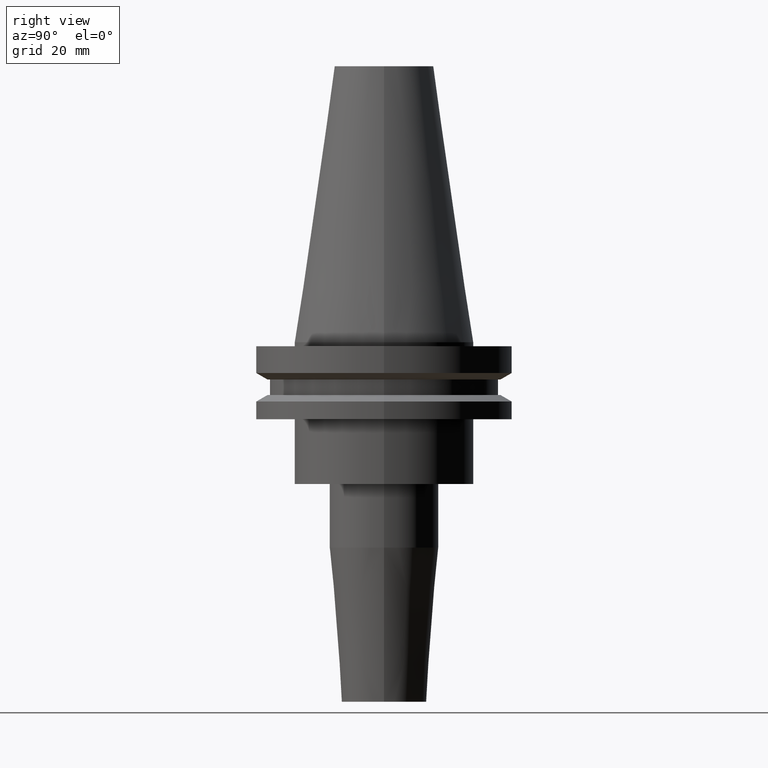
[diagram: clean part render]
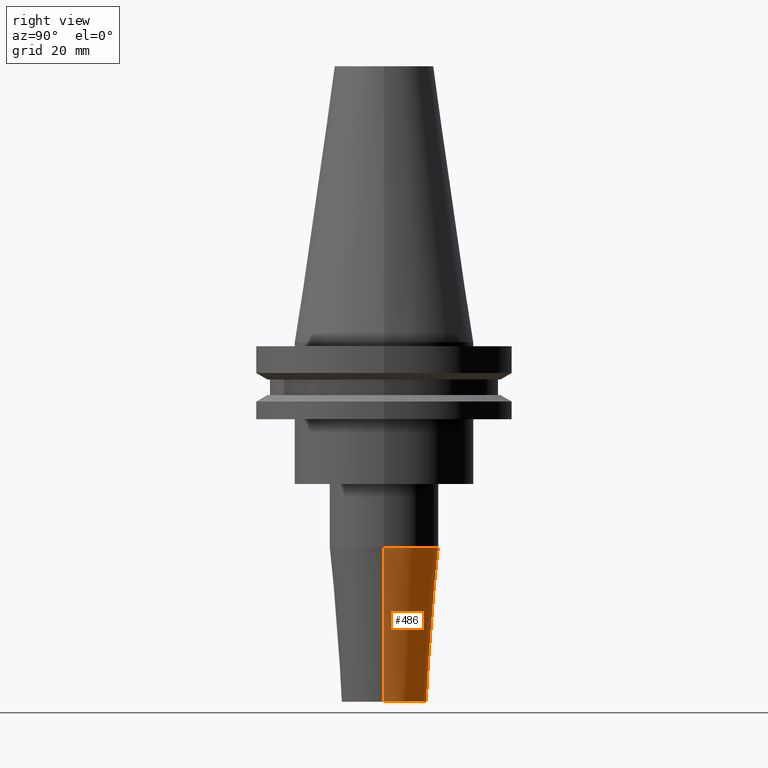
[diagram: same view with one face highlighted and labeled with its STEP entity id]
A machine part, right view. The second image highlights one B-rep face of the part: STEP entity #486.
In plain terms, the highlighted conical surface has half-angle 4.5 deg.
Its self-contained STEP definition (entity closure, byte-faithful):
#70 = CARTESIAN_POINT ( 'NONE',  ( -10.50000000000000000, 1.469576158976823947E-15, -88.89999999999999147 ) ) ;
#95 = ORIENTED_EDGE ( 'NONE', *, *, #406, .T. ) ;
#100 = VERTEX_POINT ( 'NONE', #510 ) ;
#145 = DIRECTION ( 'NONE',  ( 0.07845909572783670016, 0.000000000000000000, 0.9969173337331286300 ) ) ;
#156 = DIRECTION ( 'NONE',  ( -0.07845909572783670016, 9.608468044709099686E-18, 0.9969173337331286300 ) ) ;
#198 = VERTEX_POINT ( 'NONE', #456 ) ;
#223 = VECTOR ( 'NONE', #156, 1000.000000000000000 ) ;
#267 = DIRECTION ( 'NONE',  ( 1.000000000000000000, 0.000000000000000000, 0.000000000000000000 ) ) ;
#278 = EDGE_CURVE ( 'NONE', #489, #100, #464, .T. ) ;
#303 = AXIS2_PLACEMENT_3D ( 'NONE', #732, #346, #267 ) ;
#327 = VERTEX_POINT ( 'NONE', #70 ) ;
#331 = AXIS2_PLACEMENT_3D ( 'NONE', #749, #436, #694 ) ;
#346 = DIRECTION ( 'NONE',  ( -0.000000000000000000, -0.000000000000000000, 1.000000000000000000 ) ) ;
#356 = LINE ( 'NONE', #615, #223 ) ;
#375 = DIRECTION ( 'NONE',  ( -0.000000000000000000, -0.000000000000000000, 1.000000000000000000 ) ) ;
#397 = ORIENTED_EDGE ( 'NONE', *, *, #763, .F. ) ;
#406 = EDGE_CURVE ( 'NONE', #489, #327, #679, .T. ) ;
#427 = CARTESIAN_POINT ( 'NONE',  ( 0.000000000000000000, 0.000000000000000000, -88.89999999999999147 ) ) ;
#436 = DIRECTION ( 'NONE',  ( -0.000000000000000000, -0.000000000000000000, 1.000000000000000000 ) ) ;
#456 = CARTESIAN_POINT ( 'NONE',  ( -13.50000000000000000, 1.653273178848926867E-15, -50.78138579147185538 ) ) ;
#464 = LINE ( 'NONE', #470, #801 ) ;
#468 = CIRCLE ( 'NONE', #303, 13.50000000000000000 ) ;
#470 = CARTESIAN_POINT ( 'NONE',  ( 10.50000000000000000, 0.000000000000000000, -88.89999999999999147 ) ) ;
#486 = ADVANCED_FACE ( 'NONE', ( #747 ), #757, .T. ) ;
#489 = VERTEX_POINT ( 'NONE', #567 ) ;
#510 = CARTESIAN_POINT ( 'NONE',  ( 13.50000000000000000, 0.000000000000000000, -50.78138579147185538 ) ) ;
#513 = EDGE_CURVE ( 'NONE', #327, #198, #356, .T. ) ;
#567 = CARTESIAN_POINT ( 'NONE',  ( 10.50000000000000000, 0.000000000000000000, -88.89999999999999147 ) ) ;
#586 = ORIENTED_EDGE ( 'NONE', *, *, #513, .T. ) ;
#615 = CARTESIAN_POINT ( 'NONE',  ( -10.50000000000000000, 1.285879139104720831E-15, -88.89999999999999147 ) ) ;
#633 = DIRECTION ( 'NONE',  ( 1.000000000000000000, 0.000000000000000000, 0.000000000000000000 ) ) ;
#648 = AXIS2_PLACEMENT_3D ( 'NONE', #427, #375, #633 ) ;
#654 = ORIENTED_EDGE ( 'NONE', *, *, #278, .F. ) ;
#679 = CIRCLE ( 'NONE', #331, 10.50000000000000000 ) ;
#694 = DIRECTION ( 'NONE',  ( 1.000000000000000000, 0.000000000000000000, 0.000000000000000000 ) ) ;
#732 = CARTESIAN_POINT ( 'NONE',  ( 0.000000000000000000, 0.000000000000000000, -50.78138579147185538 ) ) ;
#744 = EDGE_LOOP ( 'NONE', ( #95, #586, #397, #654 ) ) ;
#747 = FACE_OUTER_BOUND ( 'NONE', #744, .T. ) ;
#749 = CARTESIAN_POINT ( 'NONE',  ( 0.000000000000000000, 0.000000000000000000, -88.89999999999999147 ) ) ;
#757 = CONICAL_SURFACE ( 'NONE', #648, 10.50000000000000000, 0.07853981633973655674 ) ;
#763 = EDGE_CURVE ( 'NONE', #100, #198, #468, .T. ) ;
#801 = VECTOR ( 'NONE', #145, 1000.000000000000000 ) ;